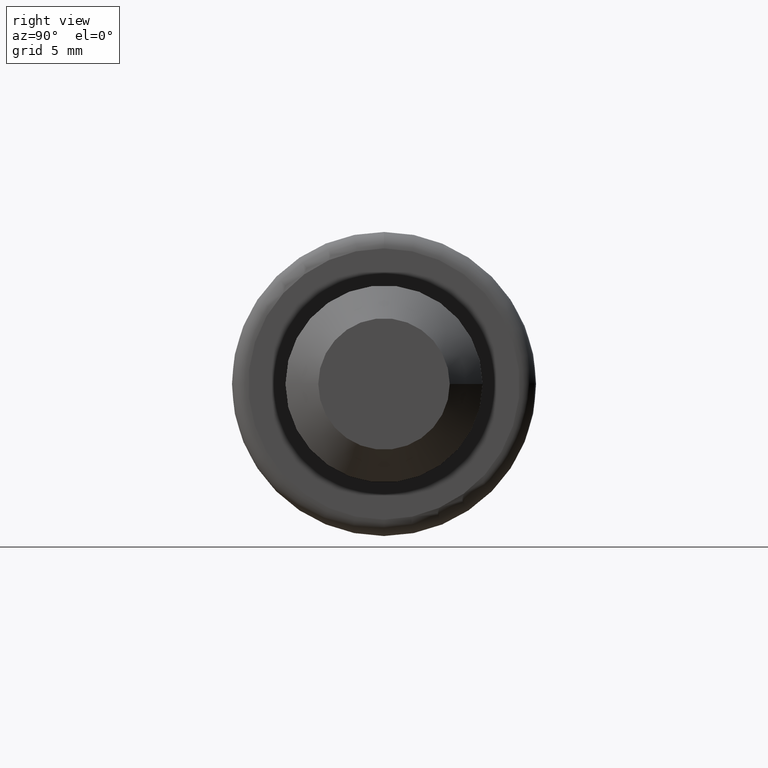
[diagram: clean part render]
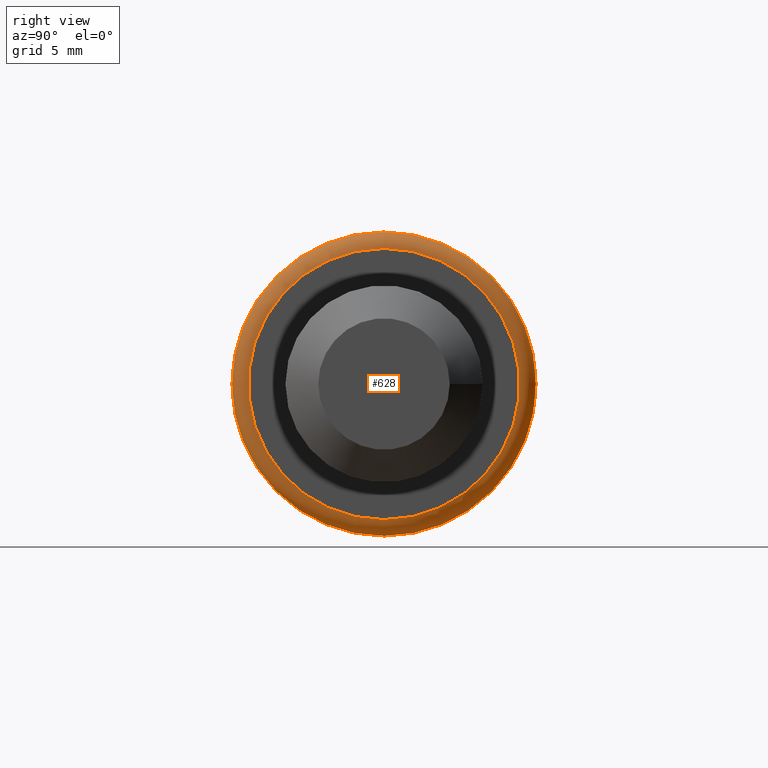
[diagram: same view with one face highlighted and labeled with its STEP entity id]
A machine part, right view. The second image highlights one B-rep face of the part: STEP entity #628.
In plain terms, the highlighted toroidal blend (fillet) surface has major radius 8.25 mm and minor (blend) radius 1 mm.
Its self-contained STEP definition (entity closure, byte-faithful):
#17=TOROIDAL_SURFACE('',#703,8.25,1.);
#79=FACE_OUTER_BOUND('',#114,.T.);
#114=EDGE_LOOP('',(#559,#560,#561,#562,#563));
#234=CIRCLE('',#704,8.25);
#235=CIRCLE('',#705,1.);
#236=CIRCLE('',#706,9.25);
#237=CIRCLE('',#707,9.25);
#298=VERTEX_POINT('',#1209);
#299=VERTEX_POINT('',#1211);
#300=VERTEX_POINT('',#1213);
#387=EDGE_CURVE('',#298,#298,#234,.T.);
#388=EDGE_CURVE('',#298,#299,#235,.T.);
#389=EDGE_CURVE('',#299,#300,#236,.T.);
#390=EDGE_CURVE('',#300,#299,#237,.T.);
#559=ORIENTED_EDGE('',*,*,#387,.T.);
#560=ORIENTED_EDGE('',*,*,#388,.T.);
#561=ORIENTED_EDGE('',*,*,#389,.T.);
#562=ORIENTED_EDGE('',*,*,#390,.T.);
#563=ORIENTED_EDGE('',*,*,#388,.F.);
#628=ADVANCED_FACE('',(#79),#17,.T.);
#703=AXIS2_PLACEMENT_3D('',#1208,#852,#853);
#704=AXIS2_PLACEMENT_3D('',#1210,#854,#855);
#705=AXIS2_PLACEMENT_3D('',#1212,#856,#857);
#706=AXIS2_PLACEMENT_3D('',#1214,#858,#859);
#707=AXIS2_PLACEMENT_3D('',#1215,#860,#861);
#852=DIRECTION('center_axis',(1.,0.,0.));
#853=DIRECTION('ref_axis',(0.,0.,-1.));
#854=DIRECTION('center_axis',(-1.,0.,0.));
#855=DIRECTION('ref_axis',(0.,-1.,1.83697019872103E-16));
#856=DIRECTION('center_axis',(0.,-1.,-1.22464679914735E-16));
#857=DIRECTION('ref_axis',(0.,-1.22464679914735E-16,1.));
#858=DIRECTION('center_axis',(1.,0.,0.));
#859=DIRECTION('ref_axis',(0.,-1.,1.83697019872103E-16));
#860=DIRECTION('center_axis',(1.,0.,0.));
#861=DIRECTION('ref_axis',(0.,-1.,1.83697019872103E-16));
#1208=CARTESIAN_POINT('Origin',(-1.,0.,0.));
#1209=CARTESIAN_POINT('',(-1.11022302462516E-15,-1.01033360929657E-15,8.25));
#1210=CARTESIAN_POINT('Origin',(-1.11022302462516E-15,0.,0.));
#1211=CARTESIAN_POINT('',(-1.,-1.1327982892113E-15,9.25));
#1212=CARTESIAN_POINT('Origin',(-1.,-1.01033360929657E-15,8.25));
#1213=CARTESIAN_POINT('',(-1.,-9.25,-1.1327982892113E-15));
#1214=CARTESIAN_POINT('Origin',(-1.,0.,0.));
#1215=CARTESIAN_POINT('Origin',(-1.,0.,0.));